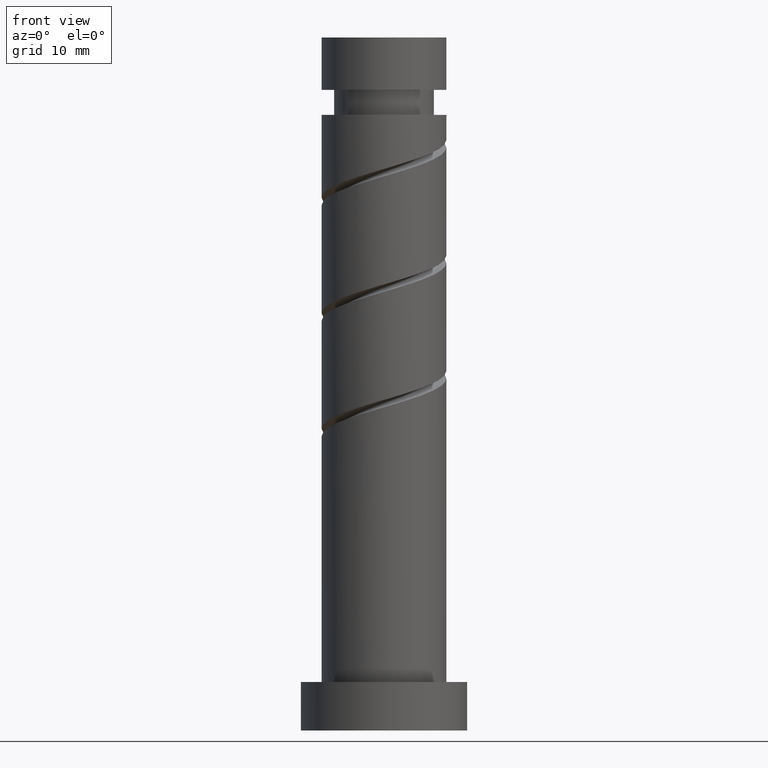
[diagram: clean part render]
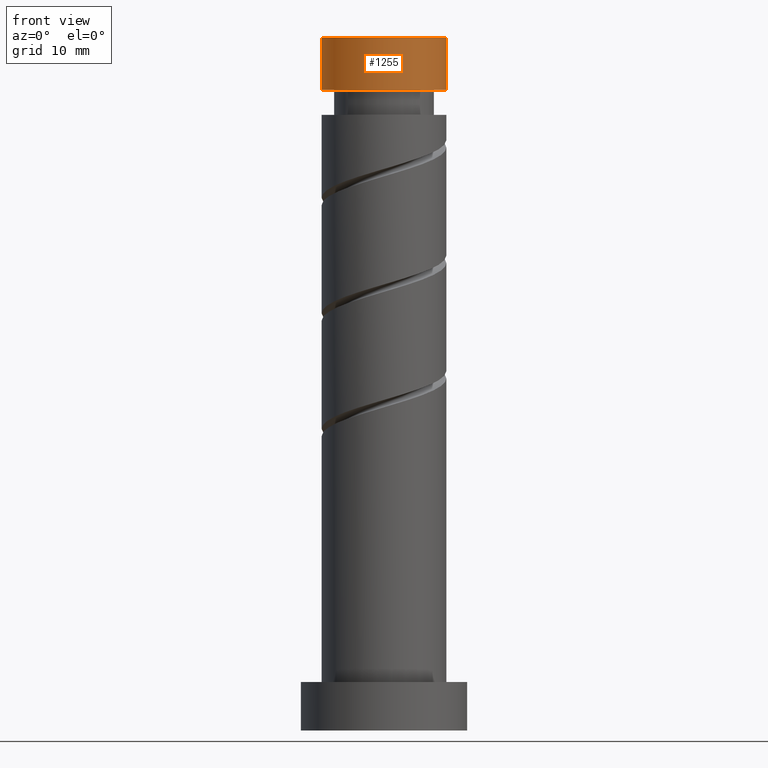
[diagram: same view with one face highlighted and labeled with its STEP entity id]
A machine part, front view. The second image highlights one B-rep face of the part: STEP entity #1255.
In plain terms, the highlighted cylindrical surface (partial cylindrical patch) has radius 9 mm, axis along (-0, -0, -1).
Its self-contained STEP definition (entity closure, byte-faithful):
#34 = AXIS2_PLACEMENT_3D ( 'NONE', #231, #1016, #1116 ) ;
#99 = CYLINDRICAL_SURFACE ( 'NONE', #34, 9.000000000000000000 ) ;
#197 = LINE ( 'NONE', #1131, #1250 ) ;
#211 = VERTEX_POINT ( 'NONE', #739 ) ;
#228 = CARTESIAN_POINT ( 'NONE',  ( -9.000000000000000000, 0.000000000000000000, 100.0000000000000000 ) ) ;
#231 = CARTESIAN_POINT ( 'NONE',  ( 0.000000000000000000, 0.000000000000000000, 100.0000000000000000 ) ) ;
#255 = CARTESIAN_POINT ( 'NONE',  ( 9.000000000000001776, 1.102182119232617714E-15, 92.44664318135319547 ) ) ;
#263 = EDGE_CURVE ( 'NONE', #1298, #211, #382, .T. ) ;
#270 = DIRECTION ( 'NONE',  ( -1.000000000000000000, 0.000000000000000000, 0.000000000000000000 ) ) ;
#336 = CARTESIAN_POINT ( 'NONE',  ( -9.000000000000000000, 0.000000000000000000, 100.0000000000000000 ) ) ;
#382 = CIRCLE ( 'NONE', #986, 9.000000000000000000 ) ;
#395 = EDGE_CURVE ( 'NONE', #1485, #1048, #698, .T. ) ;
#475 = ORIENTED_EDGE ( 'NONE', *, *, #773, .F. ) ;
#540 = FACE_OUTER_BOUND ( 'NONE', #558, .T. ) ;
#558 = EDGE_LOOP ( 'NONE', ( #475, #561, #1051, #806 ) ) ;
#561 = ORIENTED_EDGE ( 'NONE', *, *, #263, .F. ) ;
#652 = DIRECTION ( 'NONE',  ( -0.000000000000000000, -0.000000000000000000, -1.000000000000000000 ) ) ;
#674 = VECTOR ( 'NONE', #677, 1000.000000000000000 ) ;
#677 = DIRECTION ( 'NONE',  ( -0.000000000000000000, -0.000000000000000000, -1.000000000000000000 ) ) ;
#698 = CIRCLE ( 'NONE', #1371, 9.000000000000001776 ) ;
#715 = CARTESIAN_POINT ( 'NONE',  ( -9.000000000000001776, 0.000000000000000000, 92.44664318135319547 ) ) ;
#739 = CARTESIAN_POINT ( 'NONE',  ( 9.000000000000000000, 1.102182119232617517E-15, 100.0000000000000000 ) ) ;
#773 = EDGE_CURVE ( 'NONE', #211, #1485, #197, .T. ) ;
#789 = LINE ( 'NONE', #228, #674 ) ;
#806 = ORIENTED_EDGE ( 'NONE', *, *, #395, .F. ) ;
#837 = DIRECTION ( 'NONE',  ( 0.000000000000000000, 0.000000000000000000, 1.000000000000000000 ) ) ;
#841 = DIRECTION ( 'NONE',  ( -0.000000000000000000, -0.000000000000000000, -1.000000000000000000 ) ) ;
#850 = CARTESIAN_POINT ( 'NONE',  ( 0.000000000000000000, 0.000000000000000000, 100.0000000000000000 ) ) ;
#889 = EDGE_CURVE ( 'NONE', #1298, #1048, #789, .T. ) ;
#951 = CARTESIAN_POINT ( 'NONE',  ( 0.000000000000000000, 0.000000000000000000, 92.44664318135319547 ) ) ;
#986 = AXIS2_PLACEMENT_3D ( 'NONE', #850, #837, #1421 ) ;
#1016 = DIRECTION ( 'NONE',  ( -0.000000000000000000, -0.000000000000000000, -1.000000000000000000 ) ) ;
#1048 = VERTEX_POINT ( 'NONE', #715 ) ;
#1051 = ORIENTED_EDGE ( 'NONE', *, *, #889, .T. ) ;
#1116 = DIRECTION ( 'NONE',  ( -1.000000000000000000, 0.000000000000000000, 0.000000000000000000 ) ) ;
#1131 = CARTESIAN_POINT ( 'NONE',  ( 9.000000000000000000, 1.102182119232617517E-15, 100.0000000000000000 ) ) ;
#1250 = VECTOR ( 'NONE', #652, 1000.000000000000000 ) ;
#1255 = ADVANCED_FACE ( 'NONE', ( #540 ), #99, .T. ) ;
#1298 = VERTEX_POINT ( 'NONE', #336 ) ;
#1371 = AXIS2_PLACEMENT_3D ( 'NONE', #951, #841, #270 ) ;
#1421 = DIRECTION ( 'NONE',  ( 1.000000000000000000, 0.000000000000000000, 0.000000000000000000 ) ) ;
#1485 = VERTEX_POINT ( 'NONE', #255 ) ;